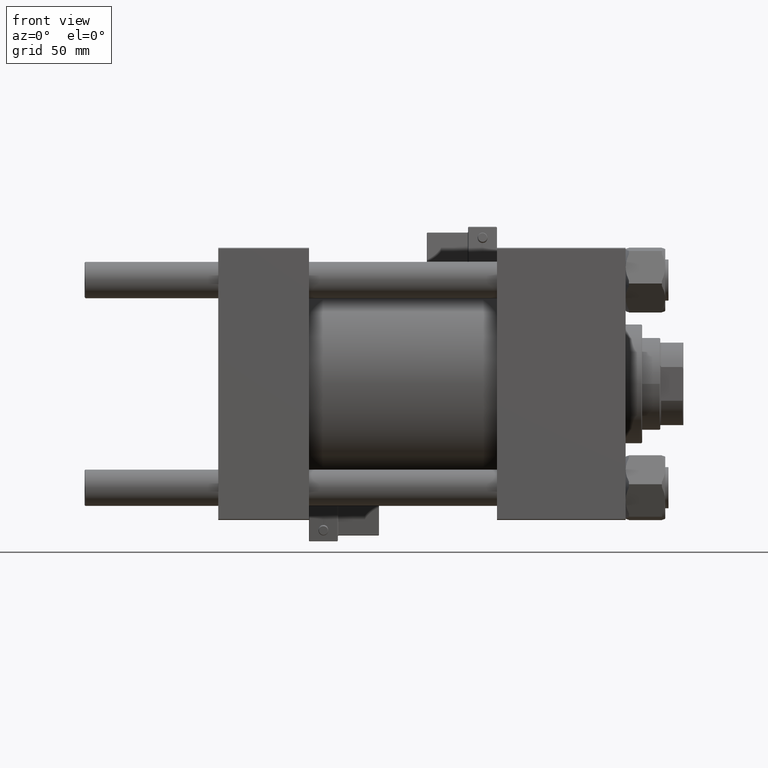
[diagram: clean part render]
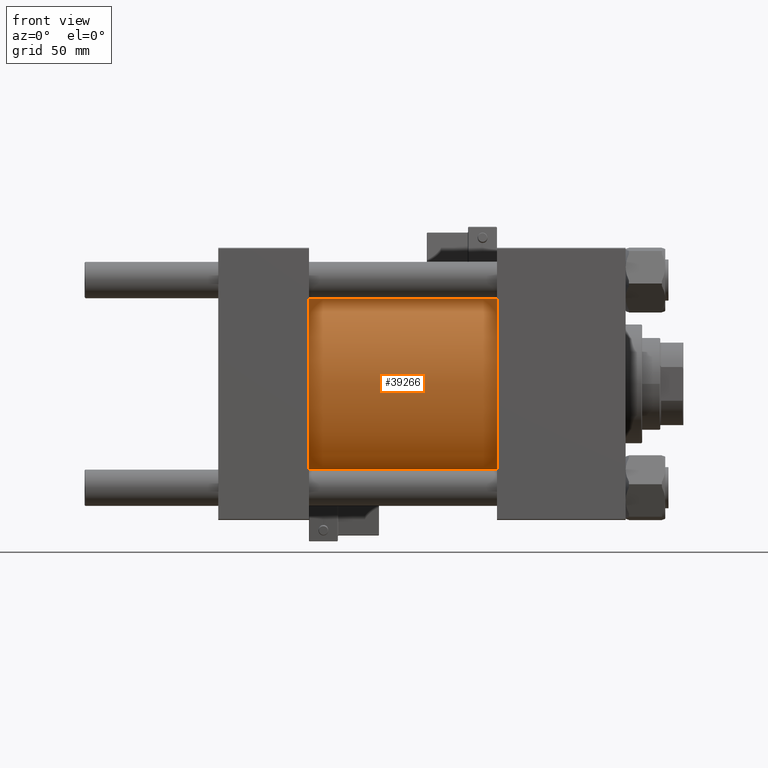
[diagram: same view with one face highlighted and labeled with its STEP entity id]
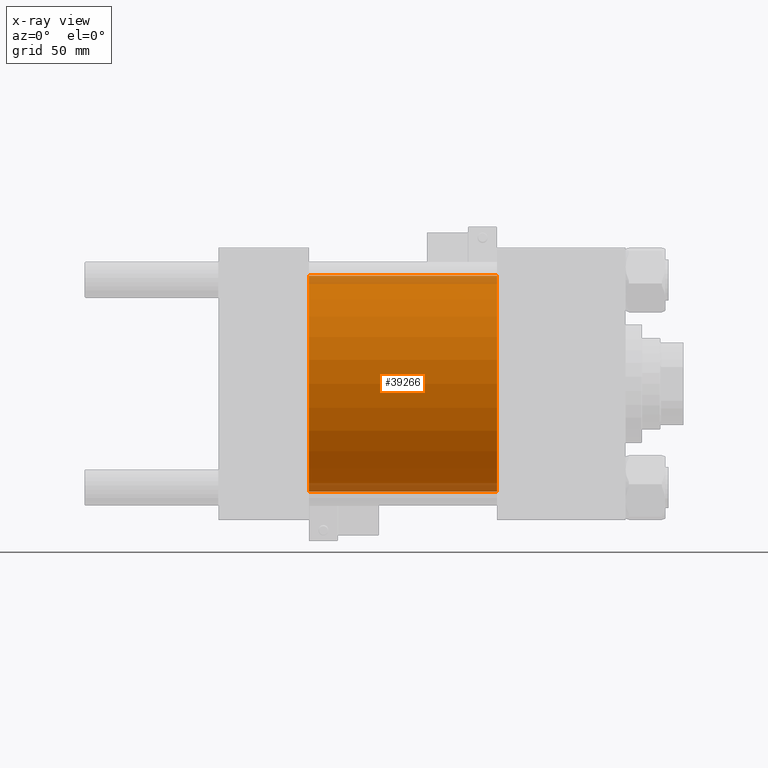
[diagram: x-ray of the same camera — body ghosted, the highlighted face saturated]
A machine part, front view. The second image highlights one B-rep face of the part: STEP entity #39266.
The next image is the same camera in x-ray: the body ghosted, the highlighted face saturated — about 8% of this face is hidden behind the body in this view.
In plain terms, the highlighted cylindrical surface (partial cylindrical patch) has radius 65.5 mm, axis along (-1, -0, -0).
Its self-contained STEP definition (entity closure, byte-faithful):
#57 = DIRECTION ( 'NONE',  ( 0.000000000000000000, 0.000000000000000000, 1.000000000000000000 ) ) ;
#114 = EDGE_CURVE ( 'NONE', #36053, #32953, #25577, .T. ) ;
#3347 = DIRECTION ( 'NONE',  ( 1.000000000000000000, 0.000000000000000000, 0.000000000000000000 ) ) ;
#4221 = ORIENTED_EDGE ( 'NONE', *, *, #114, .F. ) ;
#6146 = VECTOR ( 'NONE', #21047, 1000.000000000000000 ) ;
#11007 = CARTESIAN_POINT ( 'NONE',  ( 54.99999999999999289, 8.021436534415164826E-15, -65.50000000000001421 ) ) ;
#11824 = CARTESIAN_POINT ( 'NONE',  ( 54.99999999999999289, 0.000000000000000000, 0.000000000000000000 ) ) ;
#14474 = AXIS2_PLACEMENT_3D ( 'NONE', #15562, #3347, #48325 ) ;
#15467 = VERTEX_POINT ( 'NONE', #41832 ) ;
#15562 = CARTESIAN_POINT ( 'NONE',  ( 169.0000000000000000, 0.000000000000000000, 0.000000000000000000 ) ) ;
#19301 = DIRECTION ( 'NONE',  ( 1.000000000000000000, -0.000000000000000000, -0.000000000000000000 ) ) ;
#19424 = ORIENTED_EDGE ( 'NONE', *, *, #37313, .T. ) ;
#21047 = DIRECTION ( 'NONE',  ( -1.000000000000000000, -0.000000000000000000, -0.000000000000000000 ) ) ;
#24677 = ORIENTED_EDGE ( 'NONE', *, *, #30142, .F. ) ;
#25247 = VECTOR ( 'NONE', #41904, 1000.000000000000000 ) ;
#25538 = CIRCLE ( 'NONE', #14474, 65.50000000000001421 ) ;
#25577 = LINE ( 'NONE', #26359, #6146 ) ;
#25886 = VERTEX_POINT ( 'NONE', #44398 ) ;
#26359 = CARTESIAN_POINT ( 'NONE',  ( 169.0000000000000000, 8.021436534415164826E-15, -65.50000000000001421 ) ) ;
#28253 = CYLINDRICAL_SURFACE ( 'NONE', #29114, 65.50000000000001421 ) ;
#29114 = AXIS2_PLACEMENT_3D ( 'NONE', #35988, #52253, #57 ) ;
#29914 = CARTESIAN_POINT ( 'NONE',  ( 169.0000000000000000, 0.000000000000000000, 65.50000000000001421 ) ) ;
#30142 = EDGE_CURVE ( 'NONE', #25886, #36053, #25538, .T. ) ;
#30475 = ORIENTED_EDGE ( 'NONE', *, *, #52067, .T. ) ;
#32953 = VERTEX_POINT ( 'NONE', #11007 ) ;
#33303 = CIRCLE ( 'NONE', #40100, 65.50000000000001421 ) ;
#34436 = LINE ( 'NONE', #29914, #25247 ) ;
#35988 = CARTESIAN_POINT ( 'NONE',  ( 169.0000000000000000, 0.000000000000000000, 0.000000000000000000 ) ) ;
#36053 = VERTEX_POINT ( 'NONE', #48170 ) ;
#37292 = EDGE_LOOP ( 'NONE', ( #4221, #24677, #30475, #19424 ) ) ;
#37313 = EDGE_CURVE ( 'NONE', #15467, #32953, #33303, .T. ) ;
#39266 = ADVANCED_FACE ( 'NONE', ( #39981 ), #28253, .T. ) ;
#39981 = FACE_OUTER_BOUND ( 'NONE', #37292, .T. ) ;
#40100 = AXIS2_PLACEMENT_3D ( 'NONE', #11824, #19301, #43535 ) ;
#41832 = CARTESIAN_POINT ( 'NONE',  ( 54.99999999999999289, 0.000000000000000000, 65.50000000000001421 ) ) ;
#41904 = DIRECTION ( 'NONE',  ( -1.000000000000000000, -0.000000000000000000, -0.000000000000000000 ) ) ;
#43535 = DIRECTION ( 'NONE',  ( 0.000000000000000000, 0.000000000000000000, 1.000000000000000000 ) ) ;
#44398 = CARTESIAN_POINT ( 'NONE',  ( 169.0000000000000000, 0.000000000000000000, 65.50000000000001421 ) ) ;
#48170 = CARTESIAN_POINT ( 'NONE',  ( 169.0000000000000000, 8.021436534415164826E-15, -65.50000000000001421 ) ) ;
#48325 = DIRECTION ( 'NONE',  ( 0.000000000000000000, 0.000000000000000000, -1.000000000000000000 ) ) ;
#52067 = EDGE_CURVE ( 'NONE', #25886, #15467, #34436, .T. ) ;
#52253 = DIRECTION ( 'NONE',  ( -1.000000000000000000, -0.000000000000000000, -0.000000000000000000 ) ) ;